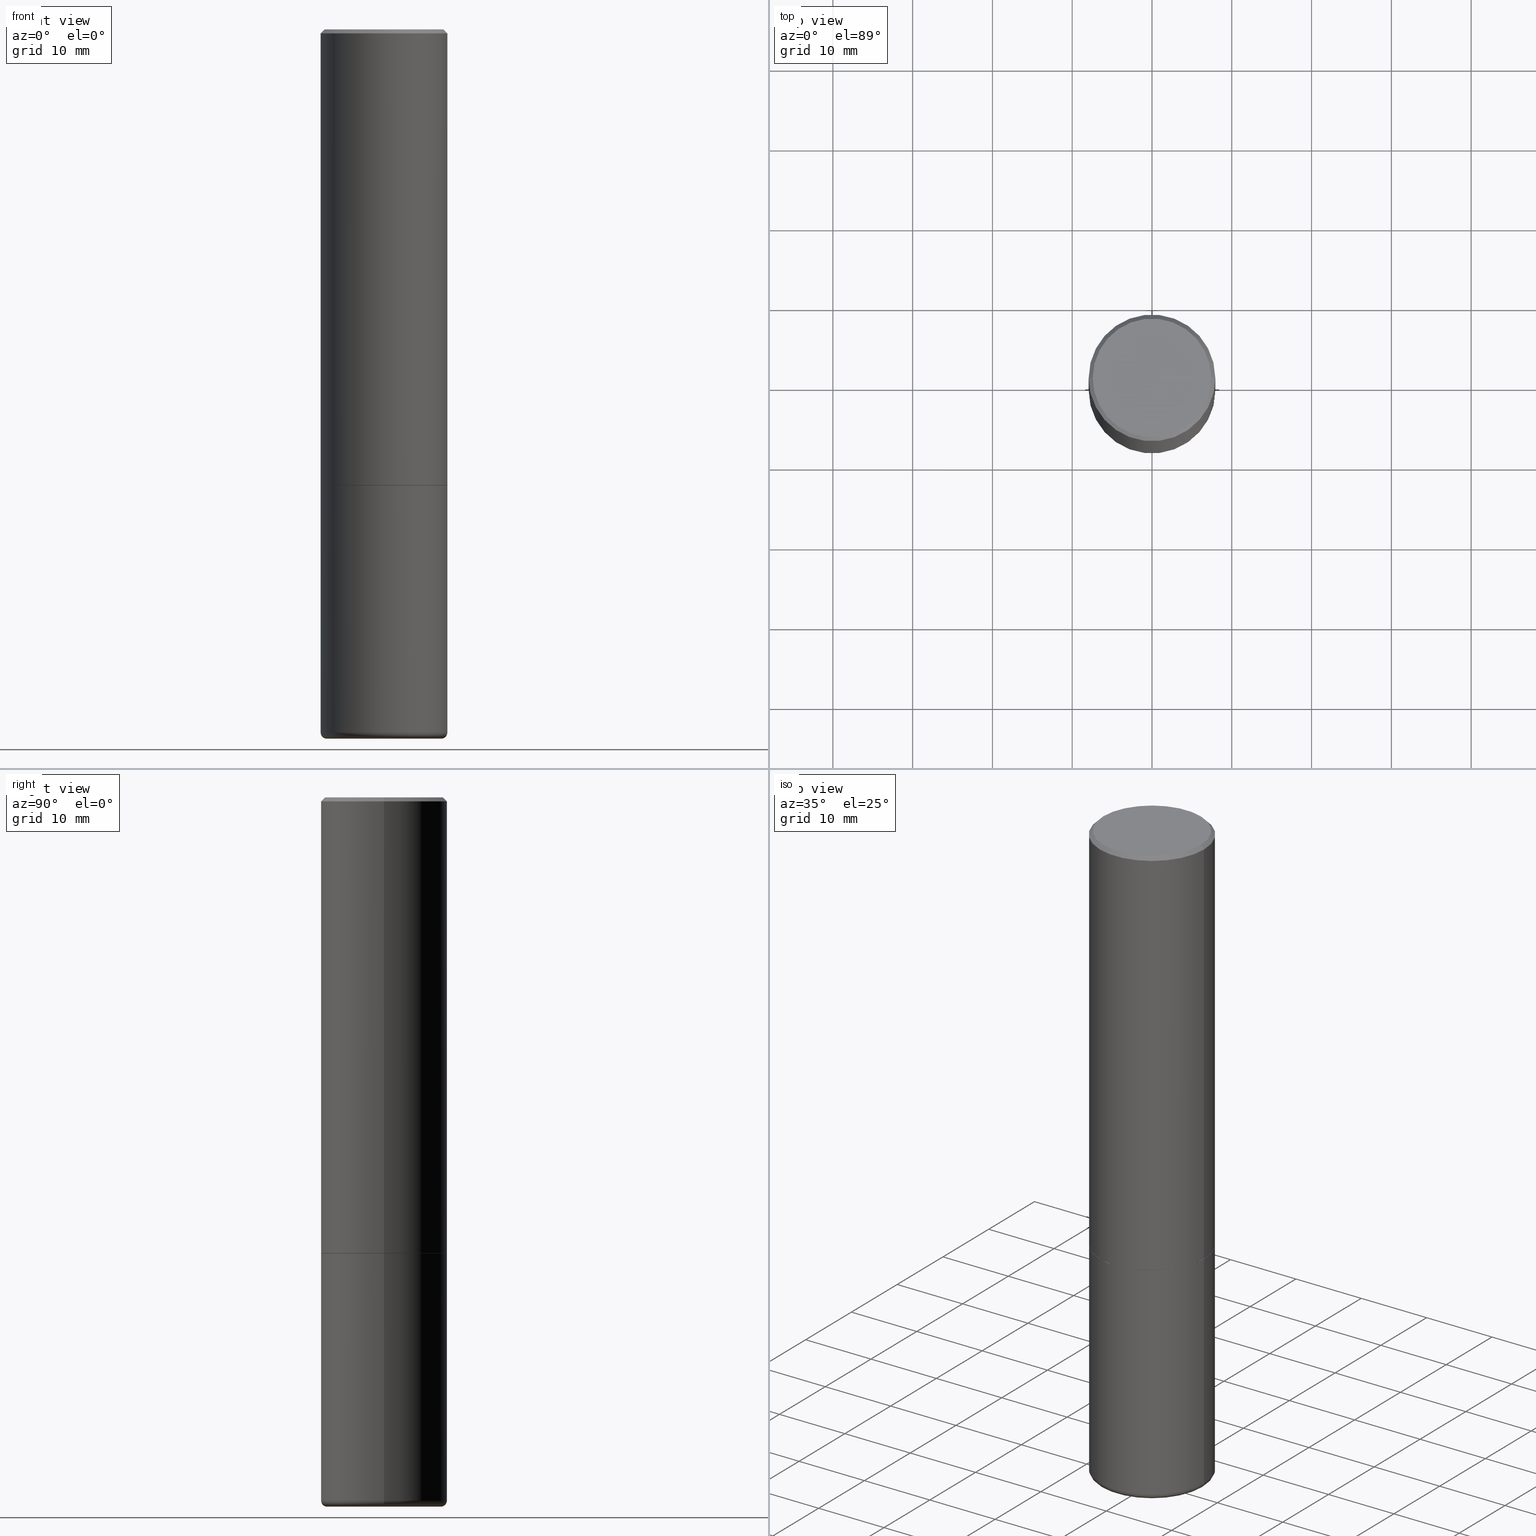
[diagram: canonical four-view strip — front | top / right | iso, engineering-drawing reading convention]
A machine part, canonical four-view strip (front | top / right | iso — engineering-drawing reading convention). The complete STEP part file that produces these views, byte-faithful:
ISO-10303-21;
HEADER;
FILE_DESCRIPTION (( 'STEP AP203' ),
    '1' );
FILE_NAME ('38078.STEP',
    '2023-03-22T20:15:57',
    ( '' ),
    ( '' ),
    'SwSTEP 2.0',
    'SolidWorks 2022',
    '' );
FILE_SCHEMA (( 'CONFIG_CONTROL_DESIGN' ));
ENDSEC;

DATA;
#1 = ADVANCED_FACE ( 'NONE', ( #88 ), #117, .F. ) ;
#2 = CARTESIAN_POINT ( 'NONE',  ( -1.043851414335219820E-46, 1.490343170380447200E-32, 4.268512490100411279E-18 ) ) ;
#3 = FACE_OUTER_BOUND ( 'NONE', #45, .T. ) ;
#4 = CARTESIAN_POINT ( 'NONE',  ( -0.2825000000000000289, -1.010830056587832689E-14, -3.470041113957361922 ) ) ;
#5 = AXIS2_PLACEMENT_3D ( 'NONE', #353, #244, #43 ) ;
#6 = DIRECTION ( 'NONE',  ( 1.000000000000000000, -6.982962677686269077E-15, 0.000000000000000000 ) ) ;
#7 = CIRCLE ( 'NONE', #107, 0.3125000000000000000 ) ;
#8 = CARTESIAN_POINT ( 'NONE',  ( 0.3114999999999999991, -1.003102588649634920E-14, -2.249999999999999556 ) ) ;
#9 = ORIENTED_EDGE ( 'NONE', *, *, #65, .F. ) ;
#10 = DATE_AND_TIME ( #219, #200 ) ;
#11 = EDGE_CURVE ( 'NONE', #253, #73, #372, .T. ) ;
#12 = CARTESIAN_POINT ( 'NONE',  ( 0.000000000000000000, 0.000000000000000000, 0.000000000000000000 ) ) ;
#13 = ORIENTED_EDGE ( 'NONE', *, *, #210, .F. ) ;
#14 = ADVANCED_BREP_SHAPE_REPRESENTATION ( '38078', ( #246, #400, #256 ), #165 ) ;
#15 = EDGE_LOOP ( 'NONE', ( #305, #83, #182 ) ) ;
#16 = EDGE_LOOP ( 'NONE', ( #9, #346, #358, #52 ) ) ;
#17 = DIRECTION ( 'NONE',  ( 1.000000000000000000, 0.000000000000000000, 0.000000000000000000 ) ) ;
#18 = ORIENTED_EDGE ( 'NONE', *, *, #30, .T. ) ;
#19 = ORIENTED_EDGE ( 'NONE', *, *, #179, .T. ) ;
#20 = PERSON_AND_ORGANIZATION ( #231, #27 ) ;
#21 = PERSON_AND_ORGANIZATION ( #231, #27 ) ;
#22 = CONICAL_SURFACE ( 'NONE', #334, 751.2258538476580725, 1.518436449235073038 ) ;
#23 = DIRECTION ( 'NONE',  ( -2.445468806185136597E-29, 3.491481338843145583E-15, 1.000000000000000000 ) ) ;
#24 = EDGE_CURVE ( 'NONE', #73, #148, #282, .T. ) ;
#25 = DIRECTION ( 'NONE',  ( -2.445468806185136597E-29, 3.491481338843145583E-15, 1.000000000000000000 ) ) ;
#26 = CONICAL_SURFACE ( 'NONE', #274, 0.3124999999999998335, 0.7853981633974473908 ) ;
#27 = ORGANIZATION ( 'UNSPECIFIED', 'UNSPECIFIED', '' ) ;
#28 = DIRECTION ( 'NONE',  ( 1.000000000000000000, -6.982962677686266711E-15, 4.876176775795935232E-29 ) ) ;
#29 = PLANE ( 'NONE',  #172 ) ;
#30 = EDGE_CURVE ( 'NONE', #208, #423, #263, .T. ) ;
#31 = ORIENTED_EDGE ( 'NONE', *, *, #243, .F. ) ;
#32 = LINE ( 'NONE', #164, #225 ) ;
#33 = DIRECTION ( 'NONE',  ( -2.445468806185136597E-29, 3.491481338843145583E-15, 1.000000000000000000 ) ) ;
#34 = LINE ( 'NONE', #168, #214 ) ;
#35 = EDGE_CURVE ( 'NONE', #50, #240, #352, .T. ) ;
#36 = CARTESIAN_POINT ( 'NONE',  ( -0.3125000000000000000, -1.740639529667232739E-15, -2.248999999999999222 ) ) ;
#37 = DIRECTION ( 'NONE',  ( 1.000000000000000000, -6.982962677686265922E-15, 0.000000000000000000 ) ) ;
#38 = AXIS2_PLACEMENT_3D ( 'NONE', #149, #42, #204 ) ;
#39 = APPROVAL_PERSON_ORGANIZATION ( #211, #440, #213 ) ;
#40 = LINE ( 'NONE', #176, #137 ) ;
#41 = AXIS2_PLACEMENT_3D ( 'NONE', #130, #197, #437 ) ;
#42 = DIRECTION ( 'NONE',  ( -2.445468806185136597E-29, 3.491481338843145583E-15, 1.000000000000000000 ) ) ;
#43 = DIRECTION ( 'NONE',  ( 1.000000000000000000, -6.982962677686265922E-15, 0.000000000000000000 ) ) ;
#44 = PRODUCT_DEFINITION ( 'UNKNOWN', '', #221, #55 ) ;
#45 = EDGE_LOOP ( 'NONE', ( #103, #433, #368, #13 ) ) ;
#46 = PERSON_AND_ORGANIZATION_ROLE ( 'creator' ) ;
#47 = CIRCLE ( 'NONE', #379, 0.02999999999999998848 ) ;
#48 = ORIENTED_EDGE ( 'NONE', *, *, #375, .T. ) ;
#49 = CALENDAR_DATE ( 2023, 22, 3 ) ;
#50 = VERTEX_POINT ( 'NONE', #75 ) ;
#51 = SECURITY_CLASSIFICATION_LEVEL ( 'unclassified' ) ;
#52 = ORIENTED_EDGE ( 'NONE', *, *, #210, .T. ) ;
#53 = LINE ( 'NONE', #304, #405 ) ;
#54 = DIRECTION ( 'NONE',  ( 1.000000000000000000, -6.982962677686265922E-15, 0.000000000000000000 ) ) ;
#55 = DESIGN_CONTEXT ( 'detailed design', #139, 'design' ) ;
#56 = EDGE_CURVE ( 'NONE', #148, #175, #7, .T. ) ;
#57 = CARTESIAN_POINT ( 'NONE',  ( -0.3125000000000000000, -7.765262354148530218E-15, -3.470041113957361922 ) ) ;
#58 = LOCAL_TIME ( 16, 15, 57.00000000000000000, #295 ) ;
#59 = TOROIDAL_SURFACE ( 'NONE', #136, 0.2825000000000000289, 0.02999999999999998848 ) ;
#60 = APPROVAL ( #435, 'UNSPECIFIED' ) ;
#61 = CARTESIAN_POINT ( 'NONE',  ( 5.502304813916556222E-29, -7.855833012397076871E-15, -2.249999999999999556 ) ) ;
#62 = CARTESIAN_POINT ( 'NONE',  ( 5.502304813916556222E-29, -7.855833012397076871E-15, -2.249999999999999556 ) ) ;
#63 = PRODUCT ( '38078', '38078', '', ( #247 ) ) ;
#64 = FACE_OUTER_BOUND ( 'NONE', #178, .T. ) ;
#65 = EDGE_CURVE ( 'NONE', #208, #50, #376, .T. ) ;
#66 = CARTESIAN_POINT ( 'NONE',  ( 0.3124999999999998335, -2.213735251080465334E-15, -0.02000000000000002123 ) ) ;
#67 = VECTOR ( 'NONE', #80, 39.37007874015748143 ) ;
#68 = EDGE_LOOP ( 'NONE', ( #325, #18 ) ) ;
#69 = CIRCLE ( 'NONE', #321, 0.3125000000000000000 ) ;
#70 = DIRECTION ( 'NONE',  ( -1.000000000000000000, 6.982962677686265922E-15, -4.876176775795935793E-29 ) ) ;
#71 = EDGE_LOOP ( 'NONE', ( #395, #216, #354, #283 ) ) ;
#72 = DIRECTION ( 'NONE',  ( -2.445468806185136877E-29, 3.491481338843145188E-15, 1.000000000000000000 ) ) ;
#73 = VERTEX_POINT ( 'NONE', #272 ) ;
#74 = CARTESIAN_POINT ( 'NONE',  ( 0.000000000000000000, 0.000000000000000000, 0.000000000000000000 ) ) ;
#75 = CARTESIAN_POINT ( 'NONE',  ( 0.3124999999999998335, -2.213735251080465334E-15, -0.02000000000000002123 ) ) ;
#76 = EDGE_LOOP ( 'NONE', ( #144, #120, #363, #294 ) ) ;
#77 = EDGE_LOOP ( 'NONE', ( #251, #384, #351, #84 ) ) ;
#78 = APPROVAL_PERSON_ORGANIZATION ( #21, #60, #82 ) ;
#79 = EDGE_CURVE ( 'NONE', #278, #240, #34, .T. ) ;
#80 = DIRECTION ( 'NONE',  ( 0.7071067811864267805, -2.468850131080992517E-15, 0.7071067811866682540 ) ) ;
#81 = CYLINDRICAL_SURFACE ( 'NONE', #276, 0.3124999999999998890 ) ;
#82 = APPROVAL_ROLE ( '' ) ;
#83 = ORIENTED_EDGE ( 'NONE', *, *, #188, .T. ) ;
#84 = ORIENTED_EDGE ( 'NONE', *, *, #234, .F. ) ;
#85 = CIRCLE ( 'NONE', #193, 0.2809299213127118833 ) ;
#86 = DATE_AND_TIME ( #49, #147 ) ;
#87 = AXIS2_PLACEMENT_3D ( 'NONE', #190, #25, #28 ) ;
#88 = FACE_OUTER_BOUND ( 'NONE', #68, .T. ) ;
#89 = PERSON_AND_ORGANIZATION ( #231, #27 ) ;
#90 = CALENDAR_DATE ( 2023, 22, 3 ) ;
#91 = EDGE_CURVE ( 'NONE', #366, #253, #47, .T. ) ;
#92 = CARTESIAN_POINT ( 'NONE',  ( 8.485877300362652309E-29, -1.211558379440060973E-14, -3.470041113957361922 ) ) ;
#93 = CARTESIAN_POINT ( 'NONE',  ( 8.559140821647976968E-29, -1.222018468595100619E-14, -3.499999999999999112 ) ) ;
#94 = EDGE_CURVE ( 'NONE', #270, #278, #386, .T. ) ;
#95 = CARTESIAN_POINT ( 'NONE',  ( 0.3124999999999998890, -2.182175836776957558E-15, 1.523805242436229235E-29 ) ) ;
#96 = CARTESIAN_POINT ( 'NONE',  ( -0.3114999999999999991, -5.637193936156142396E-15, -2.249999999999999556 ) ) ;
#97 = CLOSED_SHELL ( 'NONE', ( #166, #105, #155, #287, #112, #343, #198, #1 ) ) ;
#98 = CLOSED_SHELL ( 'NONE', ( #284, #125, #150, #290, #271, #413, #431 ) ) ;
#99 = ORIENTED_EDGE ( 'NONE', *, *, #355, .F. ) ;
#100 = DIRECTION ( 'NONE',  ( 1.000000000000000000, -6.982962677686266711E-15, 0.000000000000000000 ) ) ;
#101 = DIRECTION ( 'NONE',  ( 1.000000000000000000, -6.982962677686266711E-15, 4.876176775795936353E-29 ) ) ;
#102 = DIRECTION ( 'NONE',  ( 1.000000000000000000, -6.982962677686265133E-15, 0.000000000000000000 ) ) ;
#103 = ORIENTED_EDGE ( 'NONE', *, *, #79, .F. ) ;
#104 = LINE ( 'NONE', #8, #67 ) ;
#105 = ADVANCED_FACE ( 'NONE', ( #215 ), #81, .T. ) ;
#106 = CONICAL_SURFACE ( 'NONE', #173, 0.3114999999999999991, 0.7853981633972775267 ) ;
#107 = AXIS2_PLACEMENT_3D ( 'NONE', #410, #134, #102 ) ;
#108 = CARTESIAN_POINT ( 'NONE',  ( -1.043851414335219820E-46, 1.490343170380447200E-32, 4.268512490100411279E-18 ) ) ;
#109 = ORIENTED_EDGE ( 'NONE', *, *, #56, .T. ) ;
#110 = DIRECTION ( 'NONE',  ( 1.000000000000000000, -6.982962677686266711E-15, 4.876067333457692840E-29 ) ) ;
#111 = DIRECTION ( 'NONE',  ( -2.445468806185136597E-29, 3.491481338843145583E-15, 1.000000000000000000 ) ) ;
#112 = ADVANCED_FACE ( 'NONE', ( #3 ), #416, .T. ) ;
#113 = CARTESIAN_POINT ( 'NONE',  ( 5.502304813916556222E-29, -7.855833012397076871E-15, -2.249999999999999556 ) ) ;
#114 = PERSON_AND_ORGANIZATION ( #231, #27 ) ;
#115 = CC_DESIGN_PERSON_AND_ORGANIZATION_ASSIGNMENT ( #20, #434, ( #388 ) ) ;
#116 = ORIENTED_EDGE ( 'NONE', *, *, #302, .F. ) ;
#117 = PLANE ( 'NONE',  #296 ) ;
#118 = ORIENTED_EDGE ( 'NONE', *, *, #79, .T. ) ;
#119 = ORIENTED_EDGE ( 'NONE', *, *, #24, .F. ) ;
#120 = ORIENTED_EDGE ( 'NONE', *, *, #170, .T. ) ;
#121 = CIRCLE ( 'NONE', #370, 0.3114999999999999991 ) ;
#122 = COORDINATED_UNIVERSAL_TIME_OFFSET ( 5, 0, .BEHIND. ) ;
#123 = VECTOR ( 'NONE', #436, 39.37007874015748854 ) ;
#124 = COORDINATED_UNIVERSAL_TIME_OFFSET ( 5, 0, .BEHIND. ) ;
#125 = ADVANCED_FACE ( 'NONE', ( #194 ), #59, .T. ) ;
#126 = CARTESIAN_POINT ( 'NONE',  ( 0.2809299213127118833, -1.418190784152301404E-14, -3.499999999999999112 ) ) ;
#127 = CC_DESIGN_APPROVAL ( #440, ( #44 ) ) ;
#128 = CIRCLE ( 'NONE', #401, 0.3125000000000000000 ) ;
#129 = CYLINDRICAL_SURFACE ( 'NONE', #41, 0.3125000000000000000 ) ;
#130 = CARTESIAN_POINT ( 'NONE',  ( 0.000000000000000000, 0.000000000000000000, 0.000000000000000000 ) ) ;
#131 = CARTESIAN_POINT ( 'NONE',  ( 0.2924999999999998157, -2.110215457714318748E-15, 4.268512490114932791E-18 ) ) ;
#132 = DIRECTION ( 'NONE',  ( -2.445468806185136597E-29, 3.491481338843145583E-15, 1.000000000000000000 ) ) ;
#133 = DIRECTION ( 'NONE',  ( -6.982962677686266711E-15, -1.000000000000000000, 3.491481338843145583E-15 ) ) ;
#134 = DIRECTION ( 'NONE',  ( -2.445468806185136597E-29, 3.491481338843145583E-15, 1.000000000000000000 ) ) ;
#135 = DIRECTION ( 'NONE',  ( -2.445468806185136597E-29, 3.491481338843145583E-15, 1.000000000000000000 ) ) ;
#136 = AXIS2_PLACEMENT_3D ( 'NONE', #92, #224, #230 ) ;
#137 = VECTOR ( 'NONE', #72, 39.37007874015748143 ) ;
#138 = ORIENTED_EDGE ( 'NONE', *, *, #179, .F. ) ;
#139 = APPLICATION_CONTEXT ( 'configuration controlled 3d designs of mechanical parts and assemblies' ) ;
#140 = DIRECTION ( 'NONE',  ( -2.445468806185136877E-29, 3.491481338843145188E-15, 1.000000000000000000 ) ) ;
#141 = DIRECTION ( 'NONE',  ( -1.000000000000000000, 7.105427357600993970E-15, 0.000000000000000000 ) ) ;
#142 = DIRECTION ( 'NONE',  ( 1.000000000000000000, -6.982962677686269077E-15, 0.000000000000000000 ) ) ;
#143 = CARTESIAN_POINT ( 'NONE',  ( 0.000000000000000000, 0.000000000000000000, 0.000000000000000000 ) ) ;
#144 = ORIENTED_EDGE ( 'NONE', *, *, #91, .F. ) ;
#145 = APPROVAL_DATE_TIME ( #10, #60 ) ;
#146 = DIRECTION ( 'NONE',  ( -2.445468806185136597E-29, 3.491481338843145583E-15, 1.000000000000000000 ) ) ;
#147 = LOCAL_TIME ( 16, 15, 57.00000000000000000, #258 ) ;
#148 = VERTEX_POINT ( 'NONE', #162 ) ;
#149 = CARTESIAN_POINT ( 'NONE',  ( 8.485877300362652309E-29, -1.211558379440060973E-14, -3.470041113957361922 ) ) ;
#150 = ADVANCED_FACE ( 'NONE', ( #264 ), #129, .T. ) ;
#151 = PERSON_AND_ORGANIZATION ( #231, #27 ) ;
#152 = DATE_TIME_ROLE ( 'creation_date' ) ;
#153 = AXIS2_PLACEMENT_3D ( 'NONE', #267, #23, #157 ) ;
#154 = CONICAL_SURFACE ( 'NONE', #394, 751.2258538476580725, 1.518436449235073038 ) ;
#155 = ADVANCED_FACE ( 'NONE', ( #223 ), #26, .T. ) ;
#156 = ORIENTED_EDGE ( 'NONE', *, *, #56, .F. ) ;
#157 = DIRECTION ( 'NONE',  ( 1.000000000000000000, -6.982962677686265133E-15, 0.000000000000000000 ) ) ;
#158 = CC_DESIGN_DATE_AND_TIME_ASSIGNMENT ( #362, #328, ( #388 ) ) ;
#159 = DIRECTION ( 'NONE',  ( 1.000000000000000000, -6.982962677686265922E-15, 4.876176775795935793E-29 ) ) ;
#160 = AXIS2_PLACEMENT_3D ( 'NONE', #269, #171, #409 ) ;
#161 = DIRECTION ( 'NONE',  ( -2.445468806185136597E-29, 3.491481338843145583E-15, 1.000000000000000000 ) ) ;
#162 = CARTESIAN_POINT ( 'NONE',  ( 0.3125000000000000000, -1.003800884917403364E-14, -2.249999999999999556 ) ) ;
#163 = VERTEX_POINT ( 'NONE', #398 ) ;
#164 = CARTESIAN_POINT ( 'NONE',  ( -7.492269992898829940E-19, -1.216877990887518899E-14, -3.485277086689842374 ) ) ;
#165 =( GEOMETRIC_REPRESENTATION_CONTEXT ( 3 ) GLOBAL_UNCERTAINTY_ASSIGNED_CONTEXT ( ( #298 ) ) GLOBAL_UNIT_ASSIGNED_CONTEXT ( ( #169, #323, #364 ) ) REPRESENTATION_CONTEXT ( 'NONE', 'WORKASPACE' ) );
#166 = ADVANCED_FACE ( 'NONE', ( #367 ), #336, .T. ) ;
#167 = FACE_OUTER_BOUND ( 'NONE', #15, .T. ) ;
#168 = CARTESIAN_POINT ( 'NONE',  ( -0.3124999999999998890, 2.220446049250312292E-15, -1.537167215704657391E-29 ) ) ;
#169 =( CONVERSION_BASED_UNIT ( 'INCH', #412 ) LENGTH_UNIT ( ) NAMED_UNIT ( #280 ) );
#170 = EDGE_CURVE ( 'NONE', #366, #205, #85, .T. ) ;
#171 = DIRECTION ( 'NONE',  ( -2.445468806185136597E-29, 3.491481338843145583E-15, 1.000000000000000000 ) ) ;
#172 = AXIS2_PLACEMENT_3D ( 'NONE', #62, #303, #159 ) ;
#173 = AXIS2_PLACEMENT_3D ( 'NONE', #113, #132, #37 ) ;
#174 = DIRECTION ( 'NONE',  ( 1.000000000000000000, -6.982962677686270655E-15, 0.000000000000000000 ) ) ;
#175 = VERTEX_POINT ( 'NONE', #402 ) ;
#176 = CARTESIAN_POINT ( 'NONE',  ( -0.3125000000000000000, 2.220446049250313081E-15, -1.537167215704658232E-29 ) ) ;
#177 = APPLICATION_PROTOCOL_DEFINITION ( 'international standard', 'config_control_design', 1994, #139 ) ;
#178 = EDGE_LOOP ( 'NONE', ( #324, #220, #187 ) ) ;
#179 = EDGE_CURVE ( 'NONE', #270, #327, #121, .T. ) ;
#180 = AXIS2_PLACEMENT_3D ( 'NONE', #387, #279, #142 ) ;
#181 = COORDINATED_UNIVERSAL_TIME_OFFSET ( 5, 0, .BEHIND. ) ;
#182 = ORIENTED_EDGE ( 'NONE', *, *, #297, .F. ) ;
#183 = VERTEX_POINT ( 'NONE', #192 ) ;
#184 = ORIENTED_EDGE ( 'NONE', *, *, #229, .T. ) ;
#185 = PERSON_AND_ORGANIZATION ( #231, #27 ) ;
#186 = DIRECTION ( 'NONE',  ( -1.000000000000000000, 6.982962677686265922E-15, -4.876176775795935793E-29 ) ) ;
#187 = ORIENTED_EDGE ( 'NONE', *, *, #170, .F. ) ;
#188 = EDGE_CURVE ( 'NONE', #163, #366, #32, .T. ) ;
#189 = CALENDAR_DATE ( 2023, 22, 3 ) ;
#190 = CARTESIAN_POINT ( 'NONE',  ( 0.000000000000000000, 0.000000000000000000, 0.000000000000000000 ) ) ;
#191 = CC_DESIGN_PERSON_AND_ORGANIZATION_ASSIGNMENT ( #114, #218, ( #63 ) ) ;
#192 = CARTESIAN_POINT ( 'NONE',  ( 0.3125000000000000000, -1.003451736783519063E-14, -2.248999999999999222 ) ) ;
#193 = AXIS2_PLACEMENT_3D ( 'NONE', #93, #161, #100 ) ;
#194 = FACE_OUTER_BOUND ( 'NONE', #249, .T. ) ;
#195 = CIRCLE ( 'NONE', #441, 0.3125000000000000000 ) ;
#196 = CARTESIAN_POINT ( 'NONE',  ( 5.502304813916556222E-29, -7.855833012397076871E-15, -2.249999999999999556 ) ) ;
#197 = DIRECTION ( 'NONE',  ( -2.445468806185136597E-29, 3.491481338843145583E-15, 1.000000000000000000 ) ) ;
#198 = ADVANCED_FACE ( 'NONE', ( #365 ), #29, .F. ) ;
#199 = CARTESIAN_POINT ( 'NONE',  ( 1.048014358525195474E-27, -1.496286751389202806E-13, -42.85535582684732248 ) ) ;
#200 = LOCAL_TIME ( 16, 15, 57.00000000000000000, #124 ) ;
#201 = VECTOR ( 'NONE', #390, 39.37007874015748143 ) ;
#202 = DIRECTION ( 'NONE',  ( -1.000000000000000000, 6.982962677686265922E-15, 0.000000000000000000 ) ) ;
#203 = CARTESIAN_POINT ( 'NONE',  ( 0.3114999999999999991, -1.003102588649634920E-14, -2.249999999999999556 ) ) ;
#204 = DIRECTION ( 'NONE',  ( 1.000000000000000000, -6.982962677686269077E-15, 0.000000000000000000 ) ) ;
#205 = VERTEX_POINT ( 'NONE', #126 ) ;
#206 = CARTESIAN_POINT ( 'NONE',  ( -0.2809299213127118833, -1.005959764131863311E-14, -3.499999999999999112 ) ) ;
#207 = VECTOR ( 'NONE', #369, 39.37007874015748143 ) ;
#208 = VERTEX_POINT ( 'NONE', #131 ) ;
#209 = FACE_OUTER_BOUND ( 'NONE', #432, .T. ) ;
#210 = EDGE_CURVE ( 'NONE', #240, #50, #349, .T. ) ;
#211 = PERSON_AND_ORGANIZATION ( #231, #27 ) ;
#212 = CONICAL_SURFACE ( 'NONE', #319, 0.3124999999999998335, 0.7853981633974473908 ) ;
#213 = APPROVAL_ROLE ( '' ) ;
#214 = VECTOR ( 'NONE', #307, 39.37007874015748143 ) ;
#215 = FACE_OUTER_BOUND ( 'NONE', #322, .T. ) ;
#216 = ORIENTED_EDGE ( 'NONE', *, *, #11, .T. ) ;
#217 = PRODUCT_RELATED_PRODUCT_CATEGORY ( 'detail', '', ( #63 ) ) ;
#218 = PERSON_AND_ORGANIZATION_ROLE ( 'design_owner' ) ;
#219 = CALENDAR_DATE ( 2023, 22, 3 ) ;
#220 = ORIENTED_EDGE ( 'NONE', *, *, #261, .T. ) ;
#221 = PRODUCT_DEFINITION_FORMATION_WITH_SPECIFIED_SOURCE ( 'ANY', '', #63, .NOT_KNOWN. ) ;
#222 = DIRECTION ( 'NONE',  ( 1.000000000000000000, -6.982962677686265922E-15, 0.000000000000000000 ) ) ;
#223 = FACE_OUTER_BOUND ( 'NONE', #77, .T. ) ;
#224 = DIRECTION ( 'NONE',  ( -2.445468806185136597E-29, 3.491481338843145583E-15, 1.000000000000000000 ) ) ;
#225 = VECTOR ( 'NONE', #337, 39.37007874015748854 ) ;
#226 = CYLINDRICAL_SURFACE ( 'NONE', #260, 0.3125000000000000000 ) ;
#227 = CIRCLE ( 'NONE', #180, 0.3125000000000000000 ) ;
#228 = AXIS2_PLACEMENT_3D ( 'NONE', #420, #111, #242 ) ;
#229 = EDGE_CURVE ( 'NONE', #175, #148, #128, .T. ) ;
#230 = DIRECTION ( 'NONE',  ( 1.000000000000000000, -6.982962677686269077E-15, 4.883557194083114022E-29 ) ) ;
#231 = PERSON ( 'UNSPECIFIED', 'UNSPECIFIED', 'UNSPECIFIED', ('UNSPECIFIED'), ('UNSPECIFIED'), ('UNSPECIFIED') ) ;
#232 = ORIENTED_EDGE ( 'NONE', *, *, #254, .F. ) ;
#233 = CARTESIAN_POINT ( 'NONE',  ( 8.559140821647976968E-29, -1.222018468595100619E-14, -3.499999999999999112 ) ) ;
#234 = EDGE_CURVE ( 'NONE', #423, #240, #53, .T. ) ;
#235 = DIRECTION ( 'NONE',  ( 2.445468806185136597E-29, -3.491481338843145583E-15, -1.000000000000000000 ) ) ;
#236 = CC_DESIGN_SECURITY_CLASSIFICATION ( #388, ( #221 ) ) ;
#237 = VECTOR ( 'NONE', #342, 39.37007874015748143 ) ;
#238 = DIRECTION ( 'NONE',  ( -2.445468806185136597E-29, 3.491481338843145583E-15, 1.000000000000000000 ) ) ;
#239 = DIRECTION ( 'NONE',  ( -2.445468806185136597E-29, 3.491481338843145583E-15, 1.000000000000000000 ) ) ;
#240 = VERTEX_POINT ( 'NONE', #442 ) ;
#241 =( LENGTH_UNIT ( ) NAMED_UNIT ( * ) SI_UNIT ( $, .METRE. ) );
#242 = DIRECTION ( 'NONE',  ( 1.000000000000000000, -6.982962677686265133E-15, 0.000000000000000000 ) ) ;
#243 = EDGE_CURVE ( 'NONE', #183, #50, #339, .T. ) ;
#244 = DIRECTION ( 'NONE',  ( -2.445468806185136597E-29, 3.491481338843145583E-15, 1.000000000000000000 ) ) ;
#245 = CIRCLE ( 'NONE', #340, 0.2809299213127118833 ) ;
#246 = MANIFOLD_SOLID_BREP ( 'Body-Move/Copy2[1]', #98 ) ;
#247 = MECHANICAL_CONTEXT ( 'NONE', #421, 'mechanical' ) ;
#248 = DIRECTION ( 'NONE',  ( 1.000000000000000000, -6.982962677686266711E-15, 4.876176775795935232E-29 ) ) ;
#249 = EDGE_LOOP ( 'NONE', ( #314, #429, #116, #292 ) ) ;
#250 = DIRECTION ( 'NONE',  ( 0.000000000000000000, 0.000000000000000000, 1.000000000000000000 ) ) ;
#251 = ORIENTED_EDGE ( 'NONE', *, *, #30, .F. ) ;
#252 = DATE_AND_TIME ( #257, #268 ) ;
#253 = VERTEX_POINT ( 'NONE', #57 ) ;
#254 = EDGE_CURVE ( 'NONE', #183, #278, #69, .T. ) ;
#255 = EDGE_LOOP ( 'NONE', ( #48, #361, #232, #99 ) ) ;
#256 = AXIS2_PLACEMENT_3D ( 'NONE', #12, #250, #17 ) ;
#257 = CALENDAR_DATE ( 2023, 22, 3 ) ;
#258 = COORDINATED_UNIVERSAL_TIME_OFFSET ( 5, 0, .BEHIND. ) ;
#259 = CARTESIAN_POINT ( 'NONE',  ( 5.499859345110370619E-29, -7.852341531058232286E-15, -2.248999999999999222 ) ) ;
#260 = AXIS2_PLACEMENT_3D ( 'NONE', #74, #135, #101 ) ;
#261 = EDGE_CURVE ( 'NONE', #163, #205, #404, .T. ) ;
#262 = DIRECTION ( 'NONE',  ( -2.445468806185136597E-29, 3.491481338843145583E-15, 1.000000000000000000 ) ) ;
#263 = CIRCLE ( 'NONE', #407, 0.2924999999999998157 ) ;
#264 = FACE_OUTER_BOUND ( 'NONE', #381, .T. ) ;
#265 = DIRECTION ( 'NONE',  ( 1.000000000000000000, -6.982962677686269077E-15, 0.000000000000000000 ) ) ;
#266 = CIRCLE ( 'NONE', #414, 0.02999999999999998848 ) ;
#267 = CARTESIAN_POINT ( 'NONE',  ( 4.890937612370278413E-31, -6.982962677686297772E-17, -0.02000000000000002123 ) ) ;
#268 = LOCAL_TIME ( 16, 15, 57.00000000000000000, #181 ) ;
#269 = CARTESIAN_POINT ( 'NONE',  ( 8.485877300362652309E-29, -1.211558379440060973E-14, -3.470041113957361922 ) ) ;
#270 = VERTEX_POINT ( 'NONE', #96 ) ;
#271 = ADVANCED_FACE ( 'NONE', ( #371 ), #226, .T. ) ;
#272 = CARTESIAN_POINT ( 'NONE',  ( 0.3125000000000000000, -1.429775963117756807E-14, -3.470041113957361922 ) ) ;
#273 = CARTESIAN_POINT ( 'NONE',  ( 1.048014358525195474E-27, -1.496286751389202806E-13, -42.85535582684732248 ) ) ;
#274 = AXIS2_PLACEMENT_3D ( 'NONE', #406, #335, #439 ) ;
#275 = CC_DESIGN_APPROVAL ( #383, ( #221 ) ) ;
#276 = AXIS2_PLACEMENT_3D ( 'NONE', #143, #146, #248 ) ;
#277 = DIRECTION ( 'NONE',  ( 7.105427357601001859E-15, 1.000000000000000000, -3.491481338843145583E-15 ) ) ;
#278 = VERTEX_POINT ( 'NONE', #36 ) ;
#279 = DIRECTION ( 'NONE',  ( -2.445468806185136597E-29, 3.491481338843145583E-15, 1.000000000000000000 ) ) ;
#280 = DIMENSIONAL_EXPONENTS ( 1.000000000000000000, 0.000000000000000000, 0.000000000000000000, 0.000000000000000000, 0.000000000000000000, 0.000000000000000000, 0.000000000000000000 ) ;
#281 = FACE_OUTER_BOUND ( 'NONE', #16, .T. ) ;
#282 = LINE ( 'NONE', #312, #310 ) ;
#283 = ORIENTED_EDGE ( 'NONE', *, *, #229, .F. ) ;
#284 = ADVANCED_FACE ( 'NONE', ( #64 ), #22, .F. ) ;
#285 = PERSON_AND_ORGANIZATION_ROLE ( 'design_supplier' ) ;
#286 = EDGE_LOOP ( 'NONE', ( #313, #138 ) ) ;
#287 = ADVANCED_FACE ( 'NONE', ( #281 ), #212, .T. ) ;
#288 = ORIENTED_EDGE ( 'NONE', *, *, #94, .F. ) ;
#289 = APPROVAL_STATUS ( 'not_yet_approved' ) ;
#290 = ADVANCED_FACE ( 'NONE', ( #209 ), #316, .F. ) ;
#291 = ORIENTED_EDGE ( 'NONE', *, *, #35, .F. ) ;
#292 = ORIENTED_EDGE ( 'NONE', *, *, #428, .F. ) ;
#293 = PERSON_AND_ORGANIZATION ( #231, #27 ) ;
#294 = ORIENTED_EDGE ( 'NONE', *, *, #11, .F. ) ;
#295 = COORDINATED_UNIVERSAL_TIME_OFFSET ( 5, 0, .BEHIND. ) ;
#296 = AXIS2_PLACEMENT_3D ( 'NONE', #360, #392, #186 ) ;
#297 = EDGE_CURVE ( 'NONE', #205, #366, #245, .T. ) ;
#298 = UNCERTAINTY_MEASURE_WITH_UNIT (LENGTH_MEASURE( 1.000000000000000082E-05 ), #169, 'distance_accuracy_value', 'NONE');
#299 = AXIS2_PLACEMENT_3D ( 'NONE', #378, #315, #70 ) ;
#300 = CARTESIAN_POINT ( 'NONE',  ( 5.502304813916556222E-29, -7.855833012397075293E-15, -2.249999999999999556 ) ) ;
#301 = DIRECTION ( 'NONE',  ( -2.445468806185136597E-29, 3.491481338843145583E-15, 1.000000000000000000 ) ) ;
#302 = EDGE_CURVE ( 'NONE', #73, #253, #227, .T. ) ;
#303 = DIRECTION ( 'NONE',  ( -2.438088387897960049E-29, 3.491481338843145188E-15, 1.000000000000000000 ) ) ;
#304 = CARTESIAN_POINT ( 'NONE',  ( -0.3124999999999998335, 2.112346210000093866E-15, -0.02000000000000002123 ) ) ;
#305 = ORIENTED_EDGE ( 'NONE', *, *, #261, .F. ) ;
#306 = DIRECTION ( 'NONE',  ( -1.000000000000000000, 6.982962677686265922E-15, 0.000000000000000000 ) ) ;
#307 = DIRECTION ( 'NONE',  ( -2.445468806185136877E-29, 3.491481338843145188E-15, 1.000000000000000000 ) ) ;
#308 = FACE_OUTER_BOUND ( 'NONE', #320, .T. ) ;
#309 = CARTESIAN_POINT ( 'NONE',  ( 0.2825000000000000289, -1.408827075084698134E-14, -3.470041113957361922 ) ) ;
#310 = VECTOR ( 'NONE', #140, 39.37007874015748143 ) ;
#311 = APPROVAL_PERSON_ORGANIZATION ( #293, #383, #393 ) ;
#312 = CARTESIAN_POINT ( 'NONE',  ( 0.3125000000000000000, -2.182175836776958347E-15, 1.523805242436230075E-29 ) ) ;
#313 = ORIENTED_EDGE ( 'NONE', *, *, #375, .F. ) ;
#314 = ORIENTED_EDGE ( 'NONE', *, *, #297, .T. ) ;
#315 = DIRECTION ( 'NONE',  ( 2.438088387897960049E-29, -3.491481338843145188E-15, -1.000000000000000000 ) ) ;
#316 = PLANE ( 'NONE',  #299 ) ;
#317 = EDGE_CURVE ( 'NONE', #278, #183, #195, .T. ) ;
#318 = APPROVAL_DATE_TIME ( #86, #383 ) ;
#319 = AXIS2_PLACEMENT_3D ( 'NONE', #348, #344, #422 ) ;
#320 = EDGE_LOOP ( 'NONE', ( #288, #19, #411, #427 ) ) ;
#321 = AXIS2_PLACEMENT_3D ( 'NONE', #259, #438, #265 ) ;
#322 = EDGE_LOOP ( 'NONE', ( #418, #118, #291, #31 ) ) ;
#323 =( NAMED_UNIT ( * ) PLANE_ANGLE_UNIT ( ) SI_UNIT ( $, .RADIAN. ) );
#324 = ORIENTED_EDGE ( 'NONE', *, *, #188, .F. ) ;
#325 = ORIENTED_EDGE ( 'NONE', *, *, #408, .T. ) ;
#326 = PERSON_AND_ORGANIZATION_ROLE ( 'creator' ) ;
#327 = VERTEX_POINT ( 'NONE', #203 ) ;
#328 = DATE_TIME_ROLE ( 'classification_date' ) ;
#329 = CC_DESIGN_APPROVAL ( #60, ( #388 ) ) ;
#330 = CC_DESIGN_PERSON_AND_ORGANIZATION_ASSIGNMENT ( #151, #46, ( #44 ) ) ;
#331 = CARTESIAN_POINT ( 'NONE',  ( 7.492269994603458978E-19, -1.216877990887518899E-14, -3.485277086689842374 ) ) ;
#332 = DIRECTION ( 'NONE',  ( 1.000000000000000000, -6.982962677686265133E-15, 0.000000000000000000 ) ) ;
#333 = AXIS2_PLACEMENT_3D ( 'NONE', #61, #373, #222 ) ;
#334 = AXIS2_PLACEMENT_3D ( 'NONE', #273, #419, #202 ) ;
#335 = DIRECTION ( 'NONE',  ( 2.445468806185136597E-29, -3.491481338843145583E-15, -1.000000000000000000 ) ) ;
#336 = CONICAL_SURFACE ( 'NONE', #333, 0.3114999999999999991, 0.7853981633972775267 ) ;
#337 = DIRECTION ( 'NONE',  ( -0.9986295347545742773, 6.790662755453663733E-15, -0.05233595624293753412 ) ) ;
#338 = ORIENTED_EDGE ( 'NONE', *, *, #391, .T. ) ;
#339 = LINE ( 'NONE', #95, #207 ) ;
#340 = AXIS2_PLACEMENT_3D ( 'NONE', #233, #238, #382 ) ;
#341 = CARTESIAN_POINT ( 'NONE',  ( 5.499859345110370619E-29, -7.852341531058232286E-15, -2.248999999999999222 ) ) ;
#342 = DIRECTION ( 'NONE',  ( 0.7071067811865469066, -7.319954787623254468E-15, -0.7071067811865481278 ) ) ;
#343 = ADVANCED_FACE ( 'NONE', ( #308 ), #106, .T. ) ;
#344 = DIRECTION ( 'NONE',  ( 2.445468806185136597E-29, -3.491481338843145583E-15, -1.000000000000000000 ) ) ;
#345 = DIRECTION ( 'NONE',  ( 1.000000000000000000, -6.982962677686266711E-15, 4.876067333457692840E-29 ) ) ;
#346 = ORIENTED_EDGE ( 'NONE', *, *, #408, .F. ) ;
#347 = CC_DESIGN_PERSON_AND_ORGANIZATION_ASSIGNMENT ( #89, #285, ( #221 ) ) ;
#348 = CARTESIAN_POINT ( 'NONE',  ( 4.890937612370278413E-31, -6.982962677686297772E-17, -0.02000000000000002123 ) ) ;
#349 = CIRCLE ( 'NONE', #153, 0.3124999999999998335 ) ;
#350 = CIRCLE ( 'NONE', #357, 0.2924999999999998157 ) ;
#351 = ORIENTED_EDGE ( 'NONE', *, *, #35, .T. ) ;
#352 = CIRCLE ( 'NONE', #228, 0.3124999999999998335 ) ;
#353 = CARTESIAN_POINT ( 'NONE',  ( 5.502304813916556222E-29, -7.855833012397076871E-15, -2.249999999999999556 ) ) ;
#354 = ORIENTED_EDGE ( 'NONE', *, *, #24, .T. ) ;
#355 = EDGE_CURVE ( 'NONE', #327, #183, #104, .T. ) ;
#356 = APPROVAL_STATUS ( 'not_yet_approved' ) ;
#357 = AXIS2_PLACEMENT_3D ( 'NONE', #2, #385, #110 ) ;
#358 = ORIENTED_EDGE ( 'NONE', *, *, #234, .T. ) ;
#359 = APPROVAL_DATE_TIME ( #397, #440 ) ;
#360 = CARTESIAN_POINT ( 'NONE',  ( 2.042516583223231356E-15, 0.2924999999999998157, -1.019124035366569212E-15 ) ) ;
#361 = ORIENTED_EDGE ( 'NONE', *, *, #94, .T. ) ;
#362 = DATE_AND_TIME ( #90, #377 ) ;
#363 = ORIENTED_EDGE ( 'NONE', *, *, #428, .T. ) ;
#364 =( NAMED_UNIT ( * ) SI_UNIT ( $, .STERADIAN. ) SOLID_ANGLE_UNIT ( ) );
#365 = FACE_OUTER_BOUND ( 'NONE', #286, .T. ) ;
#366 = VERTEX_POINT ( 'NONE', #206 ) ;
#367 = FACE_OUTER_BOUND ( 'NONE', #255, .T. ) ;
#368 = ORIENTED_EDGE ( 'NONE', *, *, #243, .T. ) ;
#369 = DIRECTION ( 'NONE',  ( -2.445468806185136877E-29, 3.491481338843145188E-15, 1.000000000000000000 ) ) ;
#370 = AXIS2_PLACEMENT_3D ( 'NONE', #196, #262, #54 ) ;
#371 = FACE_OUTER_BOUND ( 'NONE', #71, .T. ) ;
#372 = CIRCLE ( 'NONE', #38, 0.3125000000000000000 ) ;
#373 = DIRECTION ( 'NONE',  ( -2.445468806185136597E-29, 3.491481338843145583E-15, 1.000000000000000000 ) ) ;
#374 = CARTESIAN_POINT ( 'NONE',  ( -0.2924999999999998157, 2.077431396611662611E-15, 4.268512490086005323E-18 ) ) ;
#375 = EDGE_CURVE ( 'NONE', #327, #270, #426, .T. ) ;
#376 = LINE ( 'NONE', #66, #237 ) ;
#377 = LOCAL_TIME ( 16, 15, 57.00000000000000000, #122 ) ;
#378 = CARTESIAN_POINT ( 'NONE',  ( 2.182175836777013173E-15, 0.3124999999999921729, -2.250000000000000444 ) ) ;
#379 = AXIS2_PLACEMENT_3D ( 'NONE', #4, #277, #141 ) ;
#380 = PRODUCT_DEFINITION_SHAPE ( 'NONE', 'NONE',  #44 ) ;
#381 = EDGE_LOOP ( 'NONE', ( #389, #338, #156, #119 ) ) ;
#382 = DIRECTION ( 'NONE',  ( 1.000000000000000000, -6.982962677686266711E-15, 0.000000000000000000 ) ) ;
#383 = APPROVAL ( #289, 'UNSPECIFIED' ) ;
#384 = ORIENTED_EDGE ( 'NONE', *, *, #65, .T. ) ;
#385 = DIRECTION ( 'NONE',  ( -2.445468806185136597E-29, 3.491481338843145583E-15, 1.000000000000000000 ) ) ;
#386 = LINE ( 'NONE', #424, #201 ) ;
#387 = CARTESIAN_POINT ( 'NONE',  ( 8.485877300362652309E-29, -1.211558379440060973E-14, -3.470041113957361922 ) ) ;
#388 = SECURITY_CLASSIFICATION ( '', '', #51 ) ;
#389 = ORIENTED_EDGE ( 'NONE', *, *, #302, .T. ) ;
#390 = DIRECTION ( 'NONE',  ( -0.7071067811864267805, 7.493145998869918709E-15, 0.7071067811866682540 ) ) ;
#391 = EDGE_CURVE ( 'NONE', #253, #175, #40, .T. ) ;
#392 = DIRECTION ( 'NONE',  ( 2.438088387897960049E-29, -3.491481338843145188E-15, -1.000000000000000000 ) ) ;
#393 = APPROVAL_ROLE ( '' ) ;
#394 = AXIS2_PLACEMENT_3D ( 'NONE', #199, #235, #306 ) ;
#395 = ORIENTED_EDGE ( 'NONE', *, *, #391, .F. ) ;
#396 = CC_DESIGN_DATE_AND_TIME_ASSIGNMENT ( #252, #152, ( #44 ) ) ;
#397 = DATE_AND_TIME ( #189, #58 ) ;
#398 = CARTESIAN_POINT ( 'NONE',  ( 8.522613213994444483E-29, -1.216952913587456327E-14, -3.485277086689842374 ) ) ;
#399 = TOROIDAL_SURFACE ( 'NONE', #160, 0.2825000000000000289, 0.02999999999999998848 ) ;
#400 = MANIFOLD_SOLID_BREP ( 'Body-Move/Copy2[2]', #97 ) ;
#401 = AXIS2_PLACEMENT_3D ( 'NONE', #300, #301, #332 ) ;
#402 = CARTESIAN_POINT ( 'NONE',  ( -0.3125000000000000000, -7.765262354148530218E-15, -2.249999999999999556 ) ) ;
#403 = DIRECTION ( 'NONE',  ( -0.7071067811865469066, 2.468850131082250355E-15, -0.7071067811865481278 ) ) ;
#404 = LINE ( 'NONE', #331, #123 ) ;
#405 = VECTOR ( 'NONE', #403, 39.37007874015748143 ) ;
#406 = CARTESIAN_POINT ( 'NONE',  ( 4.890937612370278413E-31, -6.982962677686297772E-17, -0.02000000000000002123 ) ) ;
#407 = AXIS2_PLACEMENT_3D ( 'NONE', #108, #239, #345 ) ;
#408 = EDGE_CURVE ( 'NONE', #423, #208, #350, .T. ) ;
#409 = DIRECTION ( 'NONE',  ( 1.000000000000000000, -6.982962677686269077E-15, 4.883557194083114022E-29 ) ) ;
#410 = CARTESIAN_POINT ( 'NONE',  ( 5.502304813916556222E-29, -7.855833012397075293E-15, -2.249999999999999556 ) ) ;
#411 = ORIENTED_EDGE ( 'NONE', *, *, #355, .T. ) ;
#412 = LENGTH_MEASURE_WITH_UNIT ( LENGTH_MEASURE( 0.02539999999999999897 ), #241 );
#413 = ADVANCED_FACE ( 'NONE', ( #415 ), #399, .T. ) ;
#414 = AXIS2_PLACEMENT_3D ( 'NONE', #309, #133, #174 ) ;
#415 = FACE_OUTER_BOUND ( 'NONE', #76, .T. ) ;
#416 = CYLINDRICAL_SURFACE ( 'NONE', #87, 0.3124999999999998890 ) ;
#417 = CC_DESIGN_PERSON_AND_ORGANIZATION_ASSIGNMENT ( #185, #326, ( #221 ) ) ;
#418 = ORIENTED_EDGE ( 'NONE', *, *, #254, .T. ) ;
#419 = DIRECTION ( 'NONE',  ( 2.445468806185136597E-29, -3.491481338843145583E-15, -1.000000000000000000 ) ) ;
#420 = CARTESIAN_POINT ( 'NONE',  ( 4.890937612370278413E-31, -6.982962677686297772E-17, -0.02000000000000002123 ) ) ;
#421 = APPLICATION_CONTEXT ( 'configuration controlled 3d designs of mechanical parts and assemblies' ) ;
#422 = DIRECTION ( 'NONE',  ( -1.000000000000000000, 6.982962677686265133E-15, 0.000000000000000000 ) ) ;
#423 = VERTEX_POINT ( 'NONE', #374 ) ;
#424 = CARTESIAN_POINT ( 'NONE',  ( -0.3114999999999999991, -5.642492390504364798E-15, -2.249999999999999556 ) ) ;
#425 = SHAPE_DEFINITION_REPRESENTATION ( #380, #14 ) ;
#426 = CIRCLE ( 'NONE', #5, 0.3114999999999999991 ) ;
#427 = ORIENTED_EDGE ( 'NONE', *, *, #317, .F. ) ;
#428 = EDGE_CURVE ( 'NONE', #205, #73, #266, .T. ) ;
#429 = ORIENTED_EDGE ( 'NONE', *, *, #91, .T. ) ;
#430 = APPLICATION_PROTOCOL_DEFINITION ( 'international standard', 'config_control_design', 1994, #421 ) ;
#431 = ADVANCED_FACE ( 'NONE', ( #167 ), #154, .F. ) ;
#432 = EDGE_LOOP ( 'NONE', ( #109, #184 ) ) ;
#433 = ORIENTED_EDGE ( 'NONE', *, *, #317, .T. ) ;
#434 = PERSON_AND_ORGANIZATION_ROLE ( 'classification_officer' ) ;
#435 = APPROVAL_STATUS ( 'not_yet_approved' ) ;
#436 = DIRECTION ( 'NONE',  ( 0.9986295347545742773, -7.033825938272000278E-15, -0.05233595624293753412 ) ) ;
#437 = DIRECTION ( 'NONE',  ( 1.000000000000000000, -6.982962677686266711E-15, 4.876176775795936353E-29 ) ) ;
#438 = DIRECTION ( 'NONE',  ( -2.445468806185136597E-29, 3.491481338843145583E-15, 1.000000000000000000 ) ) ;
#439 = DIRECTION ( 'NONE',  ( -1.000000000000000000, 6.982962677686265133E-15, 0.000000000000000000 ) ) ;
#440 = APPROVAL ( #356, 'UNSPECIFIED' ) ;
#441 = AXIS2_PLACEMENT_3D ( 'NONE', #341, #33, #6 ) ;
#442 = CARTESIAN_POINT ( 'NONE',  ( -0.3124999999999998335, 2.112346210000093866E-15, -0.02000000000000002123 ) ) ;
ENDSEC;
END-ISO-10303-21;
